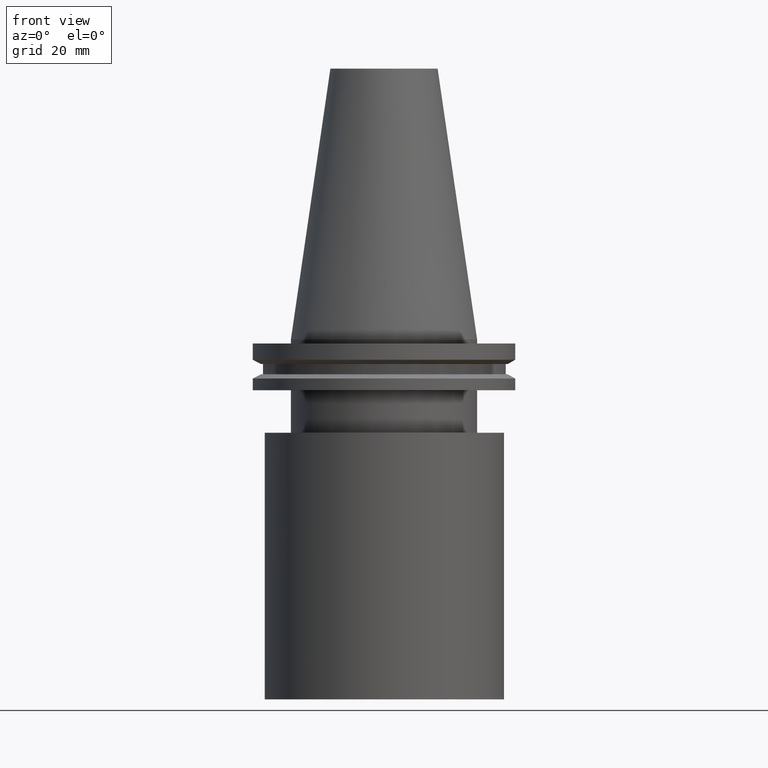
[diagram: clean part render]
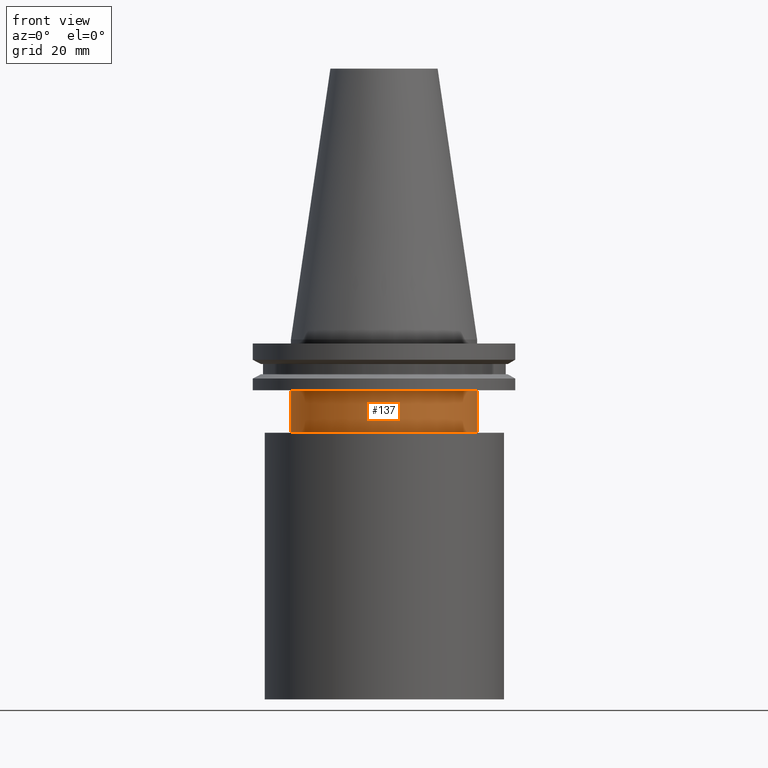
[diagram: same view with one face highlighted and labeled with its STEP entity id]
A machine part, front view. The second image highlights one B-rep face of the part: STEP entity #137.
In plain terms, the highlighted cylindrical surface (bore or boss wall) has radius 34.925 mm, axis along (-0, -0, 1).
Its self-contained STEP definition (entity closure, byte-faithful):
#7 = FACE_OUTER_BOUND ( 'NONE', #206, .T. ) ;
#10 = DIRECTION ( 'NONE',  ( -0.000000000000000000, -0.000000000000000000, 1.000000000000000000 ) ) ;
#16 = ORIENTED_EDGE ( 'NONE', *, *, #92, .F. ) ;
#28 = CARTESIAN_POINT ( 'NONE',  ( 34.92499999999999716, 0.000000000000000000, -35.00000000000000000 ) ) ;
#67 = CARTESIAN_POINT ( 'NONE',  ( 0.000000000000000000, 0.000000000000000000, -19.04999999999999716 ) ) ;
#69 = CYLINDRICAL_SURFACE ( 'NONE', #283, 34.92499999999999716 ) ;
#90 = CIRCLE ( 'NONE', #218, 34.92499999999999716 ) ;
#92 = EDGE_CURVE ( 'NONE', #204, #204, #90, .T. ) ;
#98 = EDGE_CURVE ( 'NONE', #338, #338, #279, .T. ) ;
#99 = DIRECTION ( 'NONE',  ( 1.000000000000000000, 0.000000000000000000, 0.000000000000000000 ) ) ;
#128 = DIRECTION ( 'NONE',  ( -0.000000000000000000, -0.000000000000000000, 1.000000000000000000 ) ) ;
#137 = ADVANCED_FACE ( 'NONE', ( #7, #198 ), #69, .T. ) ;
#198 = FACE_OUTER_BOUND ( 'NONE', #388, .T. ) ;
#204 = VERTEX_POINT ( 'NONE', #307 ) ;
#206 = EDGE_LOOP ( 'NONE', ( #16 ) ) ;
#218 = AXIS2_PLACEMENT_3D ( 'NONE', #67, #128, #350 ) ;
#228 = AXIS2_PLACEMENT_3D ( 'NONE', #237, #10, #258 ) ;
#237 = CARTESIAN_POINT ( 'NONE',  ( 0.000000000000000000, 0.000000000000000000, -35.00000000000000000 ) ) ;
#258 = DIRECTION ( 'NONE',  ( 1.000000000000000000, 0.000000000000000000, 0.000000000000000000 ) ) ;
#279 = CIRCLE ( 'NONE', #228, 34.92499999999999716 ) ;
#283 = AXIS2_PLACEMENT_3D ( 'NONE', #316, #375, #99 ) ;
#307 = CARTESIAN_POINT ( 'NONE',  ( 34.92499999999999716, 0.000000000000000000, -19.04999999999999716 ) ) ;
#316 = CARTESIAN_POINT ( 'NONE',  ( 0.000000000000000000, 0.000000000000000000, 101.5999999999999943 ) ) ;
#338 = VERTEX_POINT ( 'NONE', #28 ) ;
#350 = DIRECTION ( 'NONE',  ( 1.000000000000000000, 0.000000000000000000, 0.000000000000000000 ) ) ;
#357 = ORIENTED_EDGE ( 'NONE', *, *, #98, .T. ) ;
#375 = DIRECTION ( 'NONE',  ( -0.000000000000000000, -0.000000000000000000, 1.000000000000000000 ) ) ;
#388 = EDGE_LOOP ( 'NONE', ( #357 ) ) ;